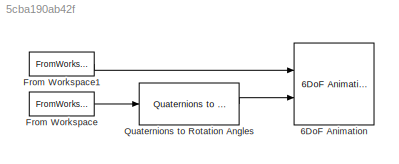
MODEL slx_5cba190ab42f
KIND model
CONFIG AbsTol = auto
CONFIG EnableMultiTasking = off
CONFIG FixedStep = auto
CONFIG MaxStep = auto
CONFIG MinStep = auto
CONFIG RelTol = 1e-3
CONFIG SampleTimeConstraint = Unconstrained
CONFIG Solver = VariableStepAuto
CONFIG SolverName = VariableStepAuto
CONFIG StartTime = 0.0
CONFIG StopTime = 10.0
BLOCK [Reference] 6DoF Animation  REF=aerolibanim/6DoF Animation
  Ports = [2]
  SourceBlock = aerolibanim/6DoF Animation
  SourceProductBaseCode = AE
  SourceType = 6DoF_Animation
BLOCK [FromWorkspace] From Workspace
  VariableName = [t x(:,4:7)]
BLOCK [FromWorkspace] From Workspace1
  VariableName = [t x(:,11:13)]
BLOCK [Reference] Quaternions to Rotation Angles  REF=sharedtransform/Quaternions to Rotation Angles
  AttributesFormatString = Rotation Order: %<rotationOrder>
  Ports = [1, 1]
  SourceBlock = sharedtransform/Quaternions to Rotation Angles
  SourceProductBaseCode = AE,PW,MT,VE,VP
  SourceType = Quat2Ang
LINE From Workspace1:1 -> 6DoF Animation:1
LINE From Workspace:1 -> Quaternions to Rotation Angles:1
LINE Quaternions to Rotation Angles:1 -> 6DoF Animation:2
